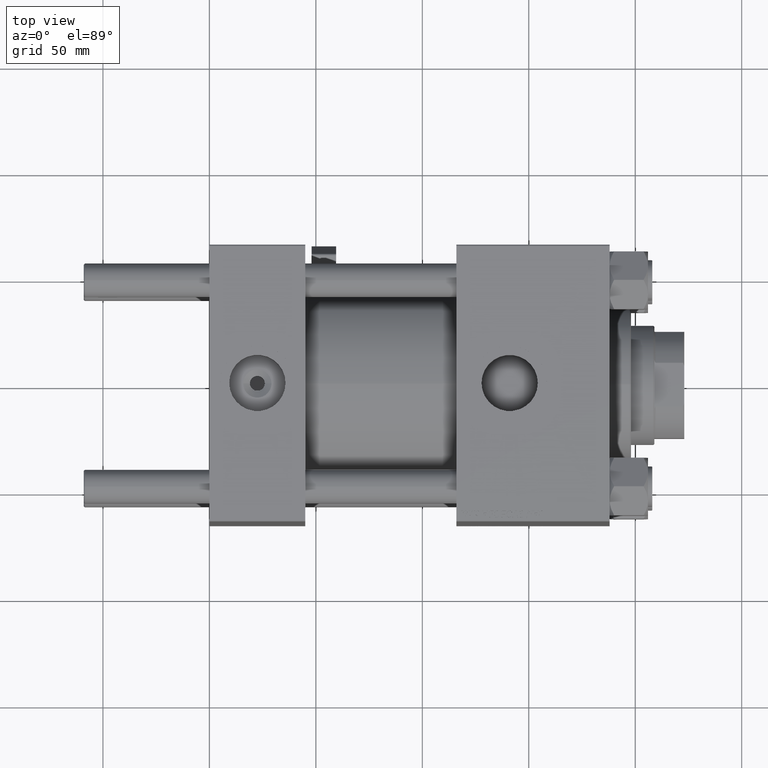
[diagram: clean part render]
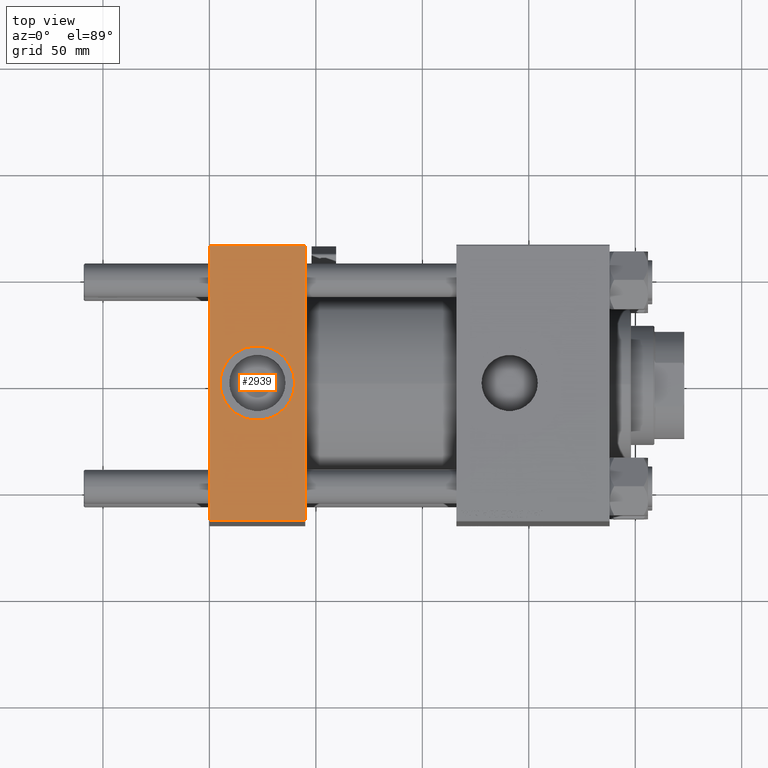
[diagram: same view with one face highlighted and labeled with its STEP entity id]
A machine part, top view. The second image highlights one B-rep face of the part: STEP entity #2939.
In plain terms, the highlighted planar face has unit normal (0, 0, -1).
Its self-contained STEP definition (entity closure, byte-faithful):
#191 = ORIENTED_EDGE ( 'NONE', *, *, #17110, .F. ) ;
#1003 = CARTESIAN_POINT ( 'NONE',  ( 40.00000000000000000, -8.673617379884035472E-15, 65.00000000000000000 ) ) ;
#1596 = CARTESIAN_POINT ( 'NONE',  ( 0.000000000000000000, -64.49999999999997158, 65.00000000000000000 ) ) ;
#2046 = CARTESIAN_POINT ( 'NONE',  ( 45.00000000000000000, 64.49999999999997158, 65.00000000000001421 ) ) ;
#2246 = VERTEX_POINT ( 'NONE', #1003 ) ;
#2939 = ADVANCED_FACE ( 'NONE', ( #29719, #22030 ), #38744, .F. ) ;
#4658 = EDGE_CURVE ( 'NONE', #26499, #11986, #7752, .T. ) ;
#4775 = CIRCLE ( 'NONE', #18347, 17.50000000000000000 ) ;
#6432 = DIRECTION ( 'NONE',  ( 0.000000000000000000, 0.000000000000000000, 1.000000000000000000 ) ) ;
#7752 = LINE ( 'NONE', #52292, #26960 ) ;
#8210 = CARTESIAN_POINT ( 'NONE',  ( 0.000000000000000000, 64.49999999999997158, 65.00000000000001421 ) ) ;
#9285 = DIRECTION ( 'NONE',  ( 0.000000000000000000, 1.000000000000000000, 1.067522139062650548E-16 ) ) ;
#11986 = VERTEX_POINT ( 'NONE', #28475 ) ;
#13187 = VERTEX_POINT ( 'NONE', #43012 ) ;
#13262 = DIRECTION ( 'NONE',  ( 0.000000000000000000, 1.067522139062650548E-16, -1.000000000000000000 ) ) ;
#13793 = ORIENTED_EDGE ( 'NONE', *, *, #21656, .F. ) ;
#15347 = EDGE_LOOP ( 'NONE', ( #46583, #50989, #13793, #42606 ) ) ;
#17002 = ORIENTED_EDGE ( 'NONE', *, *, #19849, .F. ) ;
#17110 = EDGE_CURVE ( 'NONE', #49538, #2246, #31083, .T. ) ;
#17261 = CARTESIAN_POINT ( 'NONE',  ( 45.00000000000000000, 65.00000000000000000, 65.00000000000001421 ) ) ;
#18347 = AXIS2_PLACEMENT_3D ( 'NONE', #40375, #20202, #28402 ) ;
#19849 = EDGE_CURVE ( 'NONE', #2246, #49538, #4775, .T. ) ;
#20202 = DIRECTION ( 'NONE',  ( 0.000000000000000000, 0.000000000000000000, 1.000000000000000000 ) ) ;
#20669 = EDGE_CURVE ( 'NONE', #13187, #26499, #35060, .T. ) ;
#21656 = EDGE_CURVE ( 'NONE', #26059, #11986, #27099, .T. ) ;
#22030 = FACE_OUTER_BOUND ( 'NONE', #15347, .T. ) ;
#26059 = VERTEX_POINT ( 'NONE', #2046 ) ;
#26499 = VERTEX_POINT ( 'NONE', #1596 ) ;
#26960 = VECTOR ( 'NONE', #39871, 1000.000000000000000 ) ;
#27099 = LINE ( 'NONE', #43033, #33634 ) ;
#28402 = DIRECTION ( 'NONE',  ( 1.000000000000000000, 0.000000000000000000, 0.000000000000000000 ) ) ;
#28475 = CARTESIAN_POINT ( 'NONE',  ( 45.00000000000000000, -64.49999999999997158, 65.00000000000000000 ) ) ;
#29719 = FACE_BOUND ( 'NONE', #44874, .T. ) ;
#31083 = CIRCLE ( 'NONE', #31127, 17.50000000000000000 ) ;
#31127 = AXIS2_PLACEMENT_3D ( 'NONE', #39096, #6432, #46773 ) ;
#32842 = AXIS2_PLACEMENT_3D ( 'NONE', #17261, #13262, #9285 ) ;
#33288 = VECTOR ( 'NONE', #40594, 1000.000000000000000 ) ;
#33634 = VECTOR ( 'NONE', #48028, 1000.000000000000000 ) ;
#35060 = LINE ( 'NONE', #39828, #37841 ) ;
#37841 = VECTOR ( 'NONE', #51216, 1000.000000000000000 ) ;
#38284 = EDGE_CURVE ( 'NONE', #26059, #13187, #44557, .T. ) ;
#38744 = PLANE ( 'NONE',  #32842 ) ;
#39096 = CARTESIAN_POINT ( 'NONE',  ( 22.50000000000000000, -8.673617379884035472E-15, 65.00000000000000000 ) ) ;
#39828 = CARTESIAN_POINT ( 'NONE',  ( 0.000000000000000000, 65.00000000000000000, 65.00000000000001421 ) ) ;
#39871 = DIRECTION ( 'NONE',  ( 1.000000000000000000, 0.000000000000000000, 0.000000000000000000 ) ) ;
#40375 = CARTESIAN_POINT ( 'NONE',  ( 22.50000000000000000, -8.673617379884035472E-15, 65.00000000000000000 ) ) ;
#40594 = DIRECTION ( 'NONE',  ( -1.000000000000000000, 0.000000000000000000, 0.000000000000000000 ) ) ;
#42606 = ORIENTED_EDGE ( 'NONE', *, *, #38284, .T. ) ;
#43012 = CARTESIAN_POINT ( 'NONE',  ( 0.000000000000000000, 64.49999999999997158, 65.00000000000001421 ) ) ;
#43033 = CARTESIAN_POINT ( 'NONE',  ( 45.00000000000000000, 65.00000000000000000, 65.00000000000001421 ) ) ;
#44557 = LINE ( 'NONE', #8210, #33288 ) ;
#44874 = EDGE_LOOP ( 'NONE', ( #17002, #191 ) ) ;
#46583 = ORIENTED_EDGE ( 'NONE', *, *, #20669, .T. ) ;
#46773 = DIRECTION ( 'NONE',  ( 1.000000000000000000, 0.000000000000000000, 0.000000000000000000 ) ) ;
#48028 = DIRECTION ( 'NONE',  ( 0.000000000000000000, -1.000000000000000000, -1.067522139062650425E-16 ) ) ;
#49308 = CARTESIAN_POINT ( 'NONE',  ( 4.999999999999997335, -6.530485481376167224E-15, 65.00000000000000000 ) ) ;
#49538 = VERTEX_POINT ( 'NONE', #49308 ) ;
#50989 = ORIENTED_EDGE ( 'NONE', *, *, #4658, .T. ) ;
#51216 = DIRECTION ( 'NONE',  ( 0.000000000000000000, -1.000000000000000000, -1.067522139062650425E-16 ) ) ;
#52292 = CARTESIAN_POINT ( 'NONE',  ( 45.00000000000000000, -64.49999999999997158, 65.00000000000000000 ) ) ;